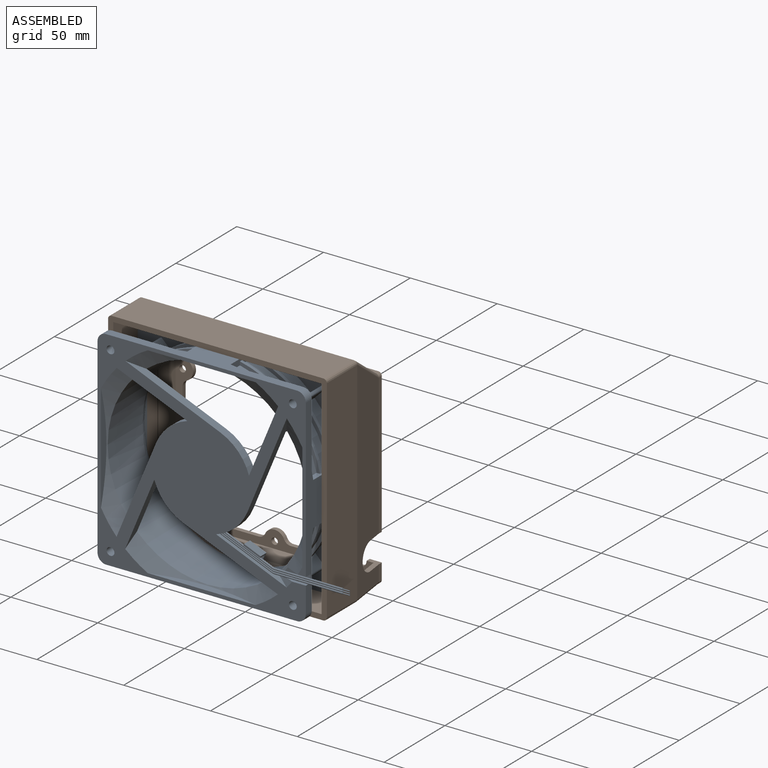
[diagram: assembled view]
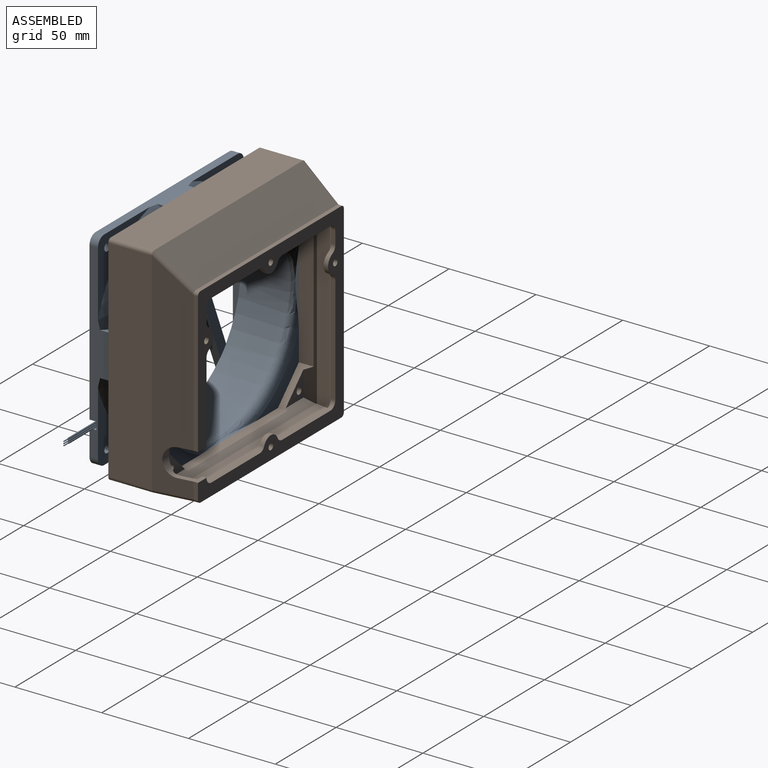
[diagram: assembled view, second angle]
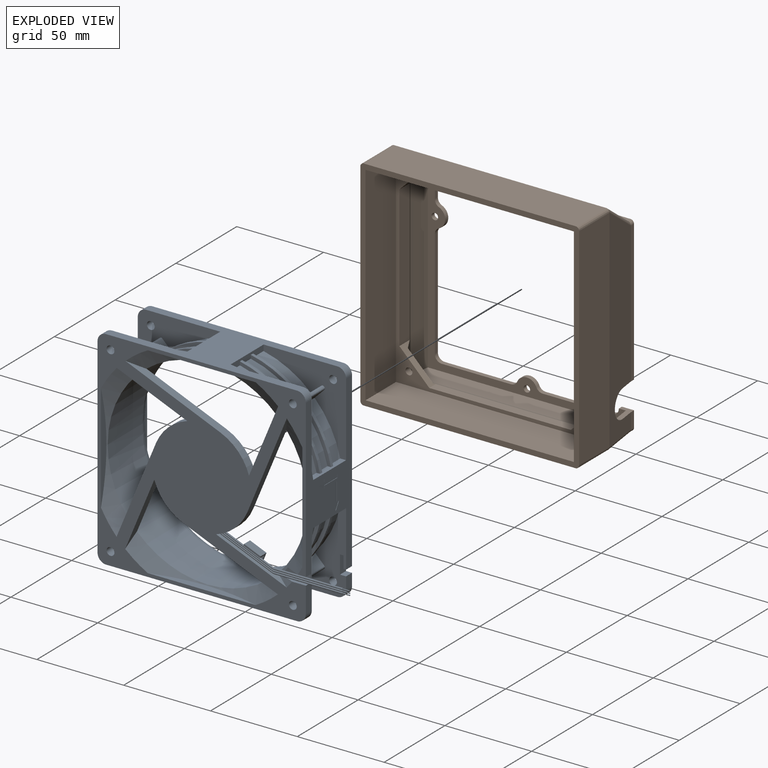
[diagram: exploded view]
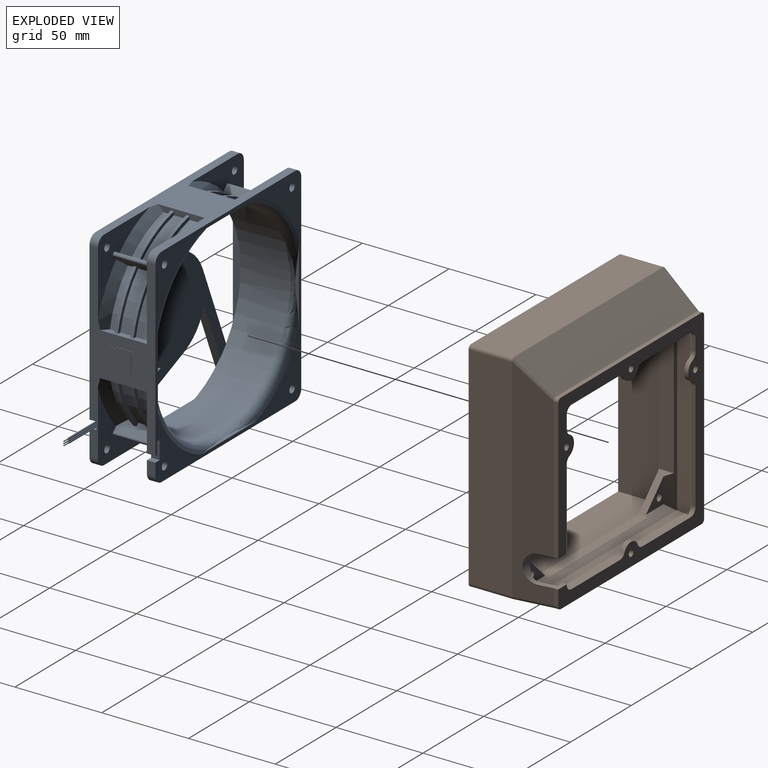
[diagram: exploded view, second angle]
ASSEMBLY  parts=2 mates=3
PART A: 225 faces, bbox 157.3x141.9x42.8 mm
  f0: torus R=3mm, axis (0,0,-1), area 3.8mm2, adj f2,f5,f6,f27,f28
  f1: torus R=3mm, axis (0,0,-1), area 3.9mm2, adj f2,f9,f25
  f2: torus R=3mm, axis (0,0,-1), area 3.8mm2, adj f0,f1,f7,f25,f27,f28
  f3: cylinder r=0.3mm len=4mm, axis (1,0,0), area 7.5mm2, adj f203,f205
  f4: cylinder r=0.3mm len=4mm, axis (1,0,0), area 7.5mm2, adj f202,f204
  f5: cylinder r=0.53mm len=39.33mm, axis (1,0,0), area 129.7mm2, adj f0,f203
  f6: cylinder r=0.53mm len=28.27mm, axis (0.92,-0.38,0), area 90mm2, adj f0,f26,f27,f28
  f7: cylinder r=0.53mm len=39.33mm, axis (1,0,0), area 129.7mm2, adj f2,f202
  f8: cylinder r=0.3mm len=4mm, axis (1,0,0), area 7.5mm2, adj f200,f201
  f9: cylinder r=0.53mm len=39.33mm, axis (1,0,0), area 129.7mm2, adj f1,f200
  f10: cylinder r=2.25mm len=4.9mm, axis (0,0,-1), area 69.3mm2, adj f115,f119
  f11: cylinder r=2.25mm len=4.9mm, axis (0,0,-1), area 69.3mm2, adj f43,f119
  f12: cylinder r=2.25mm len=4.9mm, axis (0,0,-1), area 69.3mm2, adj f55,f119
  f13: cylinder r=2.25mm len=4.9mm, axis (0,0,-1), area 69.3mm2, adj f72,f120
  f14: cylinder r=2.25mm len=4.9mm, axis (0,0,-1), area 69.3mm2, adj f34,f120
  f15: cylinder r=2.25mm len=4.9mm, axis (0,0,-1), area 69.3mm2, adj f46,f120
  f16: cylinder r=2.25mm len=4.9mm, axis (0,0,-1), area 69.3mm2, adj f67,f119
  f17: cylinder r=2.25mm len=4.9mm, axis (0,0,-1), area 69.3mm2, adj f58,f120
  f18: cylinder r=1mm len=28.2mm, axis (0,0,1), area 44.3mm2, adj f34,f43,f162,f163
  f19: cylinder r=1mm len=28.2mm, axis (0,0,-1), area 44.3mm2, adj f46,f55,f158,f160
  f20: cylinder r=1mm len=28.2mm, axis (0,0,1), area 44.3mm2, adj f58,f67,f156,f157
  f21: cylinder r=1mm len=28.2mm, axis (0,0,-1), area 44.3mm2, adj f72,f112,f115,f141
  f22: cylinder r=57.5mm len=115mm, axis (0,0,1), area 10263.8mm2, adj f23,f24,f30,f118,f125,f126,f127,f128
  f23: cone r=57.5mm half-angle=60deg, axis (0,0,1), area 580.2mm2, adj f22,f119,f134,f189,f192
  f24: cone r=57.5mm half-angle=60deg, axis (0,0,1), area 534.4mm2, adj f22,f119,f136,f175,f176,f177,f188,f193
  f25: cylinder r=0.53mm len=31.07mm, axis (0.92,-0.38,0), area 98.9mm2, adj f1,f2,f26,f27,f28
  f26: cylinder r=28.5mm len=18.01mm, axis (0,0,-1), area 122.4mm2, adj f6,f25,f27,f28,f119,f186,f188,f193
  f27: cylinder r=0.53mm len=29.6mm, axis (0.92,-0.38,0), area 43mm2, adj f0,f2,f6,f25,f26
  f28: cylinder r=0.53mm len=29.6mm, axis (0.92,-0.38,0), area 43mm2, adj f0,f2,f6,f25,f26
  f29: plane 11.24x8.1mm, normal (0,0,1), area 46.3mm2, adj f188,f195,f196,f198
  f30: cone r=57.5mm half-angle=60deg, axis (0,0,1), area 482.1mm2, adj f22,f119,f135,f187,f190
  f31: plane 110.14x38.14mm, normal (1,0,0), area 1658.4mm2, adj f34,f43,f72,f75,f76,f115,f119,f120
  f32: cylinder r=58mm len=27.66mm, axis (0,0,1), area 276.3mm2, adj f34,f41,f152,f161
  f33: cylinder r=58mm len=27.66mm, axis (0,0,1), area 228.6mm2, adj f38,f42,f152,f161
  f34: plane 47.5x47.5mm, normal (0,0,1), area 827.9mm2, adj f14,f18,f31,f32,f68,f121,f124,f152
  f35: cylinder r=58mm len=27.66mm, axis (0,0,1), area 133.4mm2, adj f36,f37,f152,f161
  f36: cone r=62.5mm half-angle=45deg, axis (0,0,1), area 208.9mm2, adj f35,f43,f124,f152,f161
  f37: plane 29.07x16.83mm, normal (0,0,1), area 65.1mm2, adj f35,f39,f152,f161
  f38: plane 29.07x16.83mm, normal (0,0,-1), area 65.1mm2, adj f33,f39,f152,f161
  f39: cylinder r=60mm len=29.07mm, axis (0,0,1), area 60mm2, adj f37,f38,f152,f161
  f40: cylinder r=60mm len=29.07mm, axis (0,0,-1), area 60mm2, adj f41,f42,f152,f161
  f41: plane 29.07x16.83mm, normal (0,0,-1), area 65.1mm2, adj f32,f40,f152,f161
  f42: plane 29.07x16.83mm, normal (0,0,1), area 65.1mm2, adj f33,f40,f152,f161
  f43: plane 42.5x42.5mm, normal (0,0,-1), area 559mm2, adj f11,f18,f31,f36,f75,f124,f161,f162
  f44: cylinder r=58mm len=27.66mm, axis (0,0,1), area 276.3mm2, adj f46,f53,f150,f158
  f45: cylinder r=58mm len=27.66mm, axis (0,0,1), area 228.6mm2, adj f50,f54,f150,f158
  f46: plane 47.5x47.5mm, normal (0,0,1), area 854.2mm2, adj f15,f19,f44,f89,f123,f124,f150,f151
  f47: cylinder r=58mm len=27.66mm, axis (0,0,1), area 133.4mm2, adj f48,f49,f150,f158
  f48: cone r=62.5mm half-angle=45deg, axis (0,0,1), area 208.9mm2, adj f47,f55,f123,f150,f158
  f49: plane 29.07x16.83mm, normal (0,0,1), area 65.1mm2, adj f47,f51,f150,f158
  f50: plane 29.07x16.83mm, normal (0,0,-1), area 65.1mm2, adj f45,f51,f150,f158
  f51: cylinder r=60mm len=29.07mm, axis (0,0,1), area 60mm2, adj f49,f50,f150,f158
  f52: cylinder r=60mm len=29.07mm, axis (0,0,-1), area 60mm2, adj f53,f54,f150,f158
  f53: plane 29.07x16.83mm, normal (0,0,-1), area 65.1mm2, adj f44,f52,f150,f158
  f54: plane 29.07x16.83mm, normal (0,0,1), area 65.1mm2, adj f45,f52,f150,f158
  f55: plane 42.5x42.5mm, normal (0,0,-1), area 559mm2, adj f12,f19,f48,f92,f123,f124,f158,f159
  f56: cylinder r=58mm len=27.66mm, axis (0,0,1), area 276.3mm2, adj f58,f65,f111,f155
  f57: cylinder r=58mm len=27.66mm, axis (0,0,1), area 228.6mm2, adj f62,f66,f111,f155
  f58: plane 47.5x47.5mm, normal (0,0,1), area 854.2mm2, adj f17,f20,f56,f99,f111,f122,f123,f149
  f59: cylinder r=58mm len=27.66mm, axis (0,0,1), area 133.4mm2, adj f60,f61,f111,f155
  f60: cone r=62.5mm half-angle=45deg, axis (0,0,1), area 208.9mm2, adj f59,f67,f111,f122,f155
  f61: plane 29.07x16.83mm, normal (0,0,1), area 65.1mm2, adj f59,f63,f111,f155
  f62: plane 29.07x16.83mm, normal (0,0,-1), area 65.1mm2, adj f57,f63,f111,f155
  f63: cylinder r=60mm len=29.07mm, axis (0,0,1), area 60mm2, adj f61,f62,f111,f155
  f64: cylinder r=60mm len=29.07mm, axis (0,0,-1), area 60mm2, adj f65,f66,f111,f155
  f65: plane 29.07x16.83mm, normal (0,0,-1), area 65.1mm2, adj f56,f64,f111,f155
  f66: plane 29.07x16.83mm, normal (0,0,1), area 65.1mm2, adj f57,f64,f111,f155
  f67: plane 42.5x42.5mm, normal (0,0,-1), area 559mm2, adj f16,f20,f60,f102,f122,f123,f155,f156
  f68: cylinder r=58mm len=27.66mm, axis (0,0,1), area 276.3mm2, adj f34,f85,f153,f162
  f69: cylinder r=58mm len=27.66mm, axis (0,0,1), area 276.3mm2, adj f72,f86,f112,f154
  f70: cylinder r=58mm len=27.66mm, axis (0,0,1), area 228.6mm2, adj f79,f87,f153,f162
  f71: cylinder r=58mm len=27.66mm, axis (0,0,1), area 228.6mm2, adj f80,f88,f112,f154
  f72: plane 47.5x47.5mm, normal (0,0,1), area 854.2mm2, adj f13,f21,f31,f69,f109,f110,f112,f113
  f73: cylinder r=58mm len=27.66mm, axis (0,0,1), area 133.4mm2, adj f75,f77,f153,f162
  f74: cylinder r=58mm len=27.66mm, axis (0,0,1), area 133.4mm2, adj f76,f78,f112,f154
  f75: cone r=62.5mm half-angle=45deg, axis (0,0,1), area 208.9mm2, adj f31,f43,f73,f153,f162
  f76: cone r=62.5mm half-angle=45deg, axis (0,0,1), area 208.9mm2, adj f31,f74,f112,f115,f154
  f77: plane 29.07x16.83mm, normal (0,0,1), area 65.1mm2, adj f73,f81,f153,f162
  f78: plane 29.07x16.83mm, normal (0,0,1), area 65.1mm2, adj f74,f82,f112,f154
  f79: plane 29.07x16.83mm, normal (0,0,-1), area 65.1mm2, adj f70,f81,f153,f162
  f80: plane 29.07x16.83mm, normal (0,0,-1), area 65.1mm2, adj f71,f82,f112,f154
  f81: cylinder r=60mm len=29.07mm, axis (0,0,1), area 60mm2, adj f77,f79,f153,f162
  f82: cylinder r=60mm len=29.07mm, axis (0,0,1), area 60mm2, adj f78,f80,f112,f154
  f83: cylinder r=60mm len=29.07mm, axis (0,0,-1), area 60mm2, adj f85,f87,f153,f162
  f84: cylinder r=60mm len=29.07mm, axis (0,0,-1), area 60mm2, adj f86,f88,f112,f154
  f85: plane 29.07x16.83mm, normal (0,0,-1), area 65.1mm2, adj f68,f83,f153,f162
  f86: plane 29.07x16.83mm, normal (0,0,-1), area 65.1mm2, adj f69,f84,f112,f154
  f87: plane 29.07x16.83mm, normal (0,0,1), area 65.1mm2, adj f70,f83,f153,f162
  f88: plane 29.07x16.83mm, normal (0,0,1), area 65.1mm2, adj f71,f84,f112,f154
  f89: cylinder r=58mm len=27.66mm, axis (0,0,1), area 276.3mm2, adj f46,f97,f151,f159
  f90: cylinder r=58mm len=27.66mm, axis (0,0,1), area 228.6mm2, adj f94,f98,f151,f159
  f91: cylinder r=58mm len=27.66mm, axis (0,0,1), area 133.4mm2, adj f92,f93,f151,f159
  f92: cone r=62.5mm half-angle=45deg, axis (0,0,1), area 208.9mm2, adj f55,f91,f124,f151,f159
  f93: plane 29.07x16.83mm, normal (0,0,1), area 65.1mm2, adj f91,f95,f151,f159
  f94: plane 29.07x16.83mm, normal (0,0,-1), area 65.1mm2, adj f90,f95,f151,f159
  f95: cylinder r=60mm len=29.07mm, axis (0,0,1), area 60mm2, adj f93,f94,f151,f159
  f96: cylinder r=60mm len=29.07mm, axis (0,0,-1), area 60mm2, adj f97,f98,f151,f159
  f97: plane 29.07x16.83mm, normal (0,0,-1), area 65.1mm2, adj f89,f96,f151,f159
  f98: plane 29.07x16.83mm, normal (0,0,1), area 65.1mm2, adj f90,f96,f151,f159
  f99: cylinder r=58mm len=27.66mm, axis (0,0,1), area 276.3mm2, adj f58,f107,f149,f156
  f100: cylinder r=58mm len=27.66mm, axis (0,0,1), area 228.6mm2, adj f104,f108,f149,f156
  f101: cylinder r=58mm len=27.66mm, axis (0,0,1), area 133.4mm2, adj f102,f103,f149,f156
  f102: cone r=62.5mm half-angle=45deg, axis (0,0,1), area 208.9mm2, adj f67,f101,f123,f149,f156
  f103: plane 29.07x16.83mm, normal (0,0,1), area 65.1mm2, adj f101,f105,f149,f156
  f104: plane 29.07x16.83mm, normal (0,0,-1), area 65.1mm2, adj f100,f105,f149,f156
  f105: cylinder r=60mm len=29.07mm, axis (0,0,1), area 60mm2, adj f103,f104,f149,f156
  f106: cylinder r=60mm len=29.07mm, axis (0,0,-1), area 60mm2, adj f107,f108,f149,f156
  f107: plane 29.07x16.83mm, normal (0,0,-1), area 65.1mm2, adj f99,f106,f149,f156
  f108: plane 29.07x16.83mm, normal (0,0,1), area 65.1mm2, adj f100,f106,f149,f156
  f109: cylinder r=58mm len=27.66mm, axis (0,0,1), area 276.3mm2, adj f72,f110,f113,f146
  f110: plane 27.01x3.38mm, normal (1,0,0), area 77.9mm2, adj f72,f109,f114,f116,f117,f122,f143,f144
  f111: plane 27.01x3.38mm, normal (-1,0,0), area 77.9mm2, adj f56,f57,f58,f59,f60,f61,f62,f63
  f112: plane 28.2x5.67mm, normal (0.71,-0.71,0), area 208.6mm2, adj f21,f69,f71,f72,f74,f76,f78,f80
  f113: plane 28.2x5.67mm, normal (-0.71,0.71,0), area 208.6mm2, adj f72,f109,f114,f115,f116,f117,f142,f143
  f114: cylinder r=58mm len=27.66mm, axis (0,0,1), area 228.6mm2, adj f110,f113,f144,f147
  f115: plane 42.5x42.5mm, normal (0,0,-1), area 559mm2, adj f10,f21,f31,f76,f112,f113,f117,f122
  f116: cylinder r=58mm len=27.66mm, axis (0,0,1), area 133.4mm2, adj f110,f113,f117,f145
  f117: cone r=62.5mm half-angle=45deg, axis (0,0,1), area 208.9mm2, adj f110,f113,f115,f116,f122
  f118: cone r=57.5mm half-angle=60deg, axis (0,0,1), area 482.1mm2, adj f22,f119,f133,f191,f194
  f119: plane 120x120mm, normal (0,0,1), area 5800.6mm2, adj f10,f11,f12,f16,f23,f24,f26,f30
  f120: plane 120x120mm, normal (0,0,-1), area 2600.1mm2, adj f13,f14,f15,f17,f31,f121,f122,f123
  f121: plane 7x4.9mm, normal (1,0,0), area 34.3mm2, adj f34,f120,f169,f182
  f122: plane 110.14x38.14mm, normal (0,1,0), area 1789.4mm2, adj f58,f60,f67,f72,f110,f111,f115,f117
  f123: plane 110.14x38.14mm, normal (-1,0,0), area 1789.4mm2, adj f46,f48,f55,f58,f67,f102,f119,f120
  f124: plane 110.14x38.14mm, normal (0,-1,0), area 1789.4mm2, adj f34,f36,f43,f46,f55,f92,f119,f120
  f125: bspline ~33.14x4.44mm, area 140.4mm2, adj f22,f126,f127,f140
  f126: torus R=62.4mm, axis (0,0,1), area 449.6mm2, adj f22,f120,f125,f128,f139,f140
  f127: torus R=62.4mm, axis (0,0,1), area 449.6mm2, adj f22,f120,f125,f129,f138,f140
  f128: bspline ~33.14x4.44mm, area 140.4mm2, adj f22,f126,f130,f139
  f129: bspline ~33.14x4.44mm, area 140.4mm2, adj f22,f127,f131,f138
  f130: torus R=62.4mm, axis (0,0,1), area 449.6mm2, adj f22,f120,f128,f132,f137,f139
  f131: torus R=62.4mm, axis (0,0,1), area 449.6mm2, adj f22,f120,f129,f132,f137,f138
  f132: bspline ~33.14x4.44mm, area 140.4mm2, adj f22,f130,f131,f137
  f133: plane 62.21x4.52mm, normal (0,-1,0), area 184.5mm2, adj f118,f119
  f134: plane 66.98x9.29mm, normal (1,0,0), area 184.7mm2, adj f23,f119
  f135: plane 62.21x4.52mm, normal (0,1,0), area 184.6mm2, adj f30,f119
  f136: plane 66.98x9.29mm, normal (-1,0,0), area 184.6mm2, adj f24,f119
  f137: plane 48.98x5.07mm, normal (-1,0,0), area 49.2mm2, adj f120,f130,f131,f132
  f138: plane 48.98x5.07mm, normal (0,-1,0), area 49.6mm2, adj f120,f127,f129,f131
  f139: plane 48.98x5.07mm, normal (0,1,0), area 49.3mm2, adj f120,f126,f128,f130
  f140: plane 48.98x5.07mm, normal (1,0,0), area 49.3mm2, adj f120,f125,f126,f127
  f141: plane 28.2x0.28mm, normal (0.71,0.71,0), area 11.3mm2, adj f21,f72,f115,f142
  f142: cylinder r=1mm len=28.2mm, axis (0,0,1), area 44.3mm2, adj f72,f113,f115,f141
  f143: cylinder r=60mm len=29.07mm, axis (0,0,1), area 60mm2, adj f110,f113,f144,f145
  f144: plane 29.07x16.83mm, normal (0,0,-1), area 65.1mm2, adj f110,f113,f114,f143
  f145: plane 29.07x16.83mm, normal (0,0,1), area 65.1mm2, adj f110,f113,f116,f143
  f146: plane 29.07x16.83mm, normal (0,0,-1), area 65.1mm2, adj f109,f110,f113,f148
  f147: plane 29.07x16.83mm, normal (0,0,1), area 65.1mm2, adj f110,f113,f114,f148
  f148: cylinder r=60mm len=29.07mm, axis (0,0,-1), area 60mm2, adj f110,f113,f146,f147
  f149: plane 27.01x3.38mm, normal (0,1,0), area 77.9mm2, adj f58,f99,f100,f101,f102,f103,f104,f105
  f150: plane 27.01x3.38mm, normal (0,-1,0), area 77.9mm2, adj f44,f45,f46,f47,f48,f49,f50,f51
  f151: plane 27.01x3.38mm, normal (-1,0,0), area 77.9mm2, adj f46,f89,f90,f91,f92,f93,f94,f95
  f152: plane 27.01x3.38mm, normal (1,0,0), area 77.9mm2, adj f32,f33,f34,f35,f36,f37,f38,f39
  f153: plane 27.01x3.38mm, normal (0,-1,0), area 77.9mm2, adj f31,f34,f68,f70,f73,f75,f77,f79
  f154: plane 27.01x3.38mm, normal (0,1,0), area 77.9mm2, adj f31,f69,f71,f72,f74,f76,f78,f80
  f155: plane 28.2x5.67mm, normal (0.71,0.71,0), area 208.6mm2, adj f56,f57,f58,f59,f60,f61,f62,f63
  f156: plane 28.2x5.67mm, normal (-0.71,-0.71,0), area 208.6mm2, adj f20,f58,f67,f99,f100,f101,f102,f103
  f157: plane 28.2x0.28mm, normal (-0.71,0.71,0), area 11.3mm2, adj f20,f58,f67,f164
  f158: plane 28.2x5.67mm, normal (-0.71,0.71,0), area 208.6mm2, adj f19,f44,f45,f46,f47,f48,f49,f50
  f159: plane 28.2x5.67mm, normal (0.71,-0.71,0), area 208.6mm2, adj f46,f55,f89,f90,f91,f92,f93,f94
  f160: plane 28.2x0.28mm, normal (-0.71,-0.71,0), area 11.3mm2, adj f19,f46,f55,f165
  f161: plane 28.2x5.67mm, normal (-0.71,-0.71,0), area 208.6mm2, adj f32,f33,f34,f35,f36,f37,f38,f39
  f162: plane 28.2x5.67mm, normal (0.71,0.71,0), area 208.6mm2, adj f18,f34,f43,f68,f70,f73,f75,f77
  f163: plane 28.2x0.28mm, normal (0.71,-0.71,0), area 11.3mm2, adj f18,f34,f43,f166
  f164: cylinder r=1mm len=28.2mm, axis (0,0,-1), area 44.3mm2, adj f58,f67,f155,f157
  f165: cylinder r=1mm len=28.2mm, axis (0,0,1), area 44.3mm2, adj f46,f55,f159,f160
  f166: cylinder r=1mm len=28.2mm, axis (0,0,-1), area 44.3mm2, adj f34,f43,f161,f163
  f167: cylinder r=5mm len=5mm, axis (0,0,-1), area 38.5mm2, adj f55,f119,f123,f124
  f168: cylinder r=5mm len=5mm, axis (0,0,1), area 38.5mm2, adj f46,f120,f123,f124
  f169: cylinder r=5mm len=5mm, axis (0,0,1), area 38.5mm2, adj f34,f120,f121,f124
  f170: cylinder r=5mm len=5mm, axis (0,0,-1), area 38.5mm2, adj f31,f43,f119,f124
  f171: cylinder r=5mm len=5mm, axis (0,0,1), area 38.5mm2, adj f58,f120,f122,f123
  f172: cylinder r=5mm len=5mm, axis (0,0,-1), area 38.5mm2, adj f67,f119,f122,f123
  f173: cylinder r=5mm len=5mm, axis (0,0,1), area 38.5mm2, adj f31,f72,f120,f122
  f174: cylinder r=5mm len=5mm, axis (0,0,-1), area 38.5mm2, adj f31,f115,f119,f122
  f175: plane 17.39x4.42mm, normal (0,1,0), area 49.5mm2, adj f24,f31,f119,f177
  f176: plane 13.53x4.36mm, normal (0,-1,0), area 35.6mm2, adj f24,f31,f119,f177
  f177: plane 16.97x4.5mm, normal (0,0,1), area 67.5mm2, adj f24,f31,f175,f176
  f178: plane 4.9x1.5mm, normal (0,-1,0), area 7.3mm2, adj f31,f34,f120,f179
  f179: plane 7x4.9mm, normal (-1,0,0), area 34.3mm2, adj f34,f120,f178,f180
  f180: plane 4.9x2mm, normal (0,-1,0), area 9.8mm2, adj f34,f120,f179,f181
  f181: plane 10.5x4.9mm, normal (1,0,0), area 51.5mm2, adj f34,f120,f180,f182
  f182: plane 4.9x3.5mm, normal (0,1,0), area 17.1mm2, adj f34,f120,f121,f181
  f183: cylinder r=28.5mm len=18.01mm, axis (0,0,-1), area 123.2mm2, adj f119,f186,f191,f194
  f184: cylinder r=28.5mm len=18.01mm, axis (0,0,-1), area 123.2mm2, adj f119,f186,f189,f192
  f185: cylinder r=28.5mm len=18.01mm, axis (0,0,-1), area 123.2mm2, adj f119,f186,f187,f190
  f186: plane 90.88x90.88mm, normal (0,0,-1), area 3628.5mm2, adj f22,f26,f183,f184,f185,f187,f188,f189
  f187: plane 55.25x23.14mm, normal (-0.38,-0.92,0), area 267.4mm2, adj f22,f30,f119,f185,f186
  f188: plane 40.95x17.19mm, normal (0.38,0.92,0), area 182.7mm2, adj f22,f24,f26,f29,f119,f186,f195,f196
  f189: plane 55.25x23.14mm, normal (-0.92,0.38,0), area 267.4mm2, adj f22,f23,f119,f184,f186
  f190: plane 40.95x17.19mm, normal (0.92,-0.38,0), area 193mm2, adj f22,f30,f119,f185,f186
  f191: plane 55.25x23.14mm, normal (0.38,0.92,0), area 267.4mm2, adj f22,f118,f119,f183,f186
  f192: plane 40.95x17.19mm, normal (-0.38,-0.92,0), area 193mm2, adj f22,f23,f119,f184,f186
  f193: plane 55.25x23.14mm, normal (0.92,-0.38,0), area 267.4mm2, adj f22,f24,f26,f119,f186
  f194: plane 40.95x17.19mm, normal (-0.92,0.38,0), area 193mm2, adj f22,f118,f119,f183,f186
  f195: plane 5.08x4.9mm, normal (-0.92,0.38,0), area 9.4mm2, adj f29,f186,f188,f197,f198,f199
  f196: plane 5.08x4.9mm, normal (0.92,-0.38,0), area 9.4mm2, adj f29,f186,f188,f197,f198,f199
  f197: plane 9.52x4.9mm, normal (0.38,0.92,0), area 50.5mm2, adj f186,f195,f196,f199
  f198: plane 9.52x3.94mm, normal (-0.38,-0.92,0), area 40.2mm2, adj f29,f195,f196,f199
  f199: plane 9.9x4.87mm, normal (0,0,1), area 10.3mm2, adj f195,f196,f197,f198
  f200: plane 1.05x1.05mm, normal (1,0,0), area 0.6mm2, adj f8,f9
  f201: plane 0.6x0.6mm, normal (1,0,0), area 0.3mm2, adj f8
  f202: plane 1.05x1.05mm, normal (1,0,0), area 0.6mm2, adj f4,f7
  f203: plane 1.05x1.05mm, normal (1,0,0), area 0.6mm2, adj f3,f5
  f204: plane 0.6x0.6mm, normal (1,0,0), area 0.3mm2, adj f4
  f205: plane 0.6x0.6mm, normal (1,0,0), area 0.3mm2, adj f3
  f206: plane 1.8x0.2mm, normal (0,0,1), area 0.4mm2, adj f31,f207,f212,f213
  f207: plane 10.6x0.2mm, normal (0,1,0), area 2.1mm2, adj f31,f206,f208,f213
  f208: plane 1.75x0.2mm, normal (0,0,1), area 0.3mm2, adj f31,f207,f209,f213
  f209: plane 4.4x2.65mm, normal (0,0.86,-0.52), area 1mm2, adj f31,f208,f210,f213
  f210: plane 4.4x2.65mm, normal (0,-0.86,-0.52), area 1mm2, adj f31,f209,f211,f213
  f211: plane 1.75x0.2mm, normal (0,0,1), area 0.3mm2, adj f31,f210,f212,f213
  f212: plane 10.6x0.2mm, normal (0,-1,0), area 2.1mm2, adj f31,f206,f211,f213
  f213: plane 15x5.3mm, normal (1,0,0), area 30.7mm2, adj f206,f207,f208,f209,f210,f211,f212
  f214: plane 1.8x0.2mm, normal (0,-1,0), area 0.4mm2, adj f31,f215,f220,f221
  f215: plane 10.6x0.2mm, normal (0,0,1), area 2.1mm2, adj f31,f214,f216,f221
  f216: plane 1.75x0.2mm, normal (0,-1,0), area 0.3mm2, adj f31,f215,f217,f221
  f217: plane 4.4x2.65mm, normal (0,0.52,0.86), area 1mm2, adj f31,f216,f218,f221
  f218: plane 4.4x2.65mm, normal (0,0.52,-0.86), area 1mm2, adj f31,f217,f219,f221
  f219: plane 1.75x0.2mm, normal (0,-1,0), area 0.3mm2, adj f31,f218,f220,f221
  f220: plane 10.6x0.2mm, normal (0,0,-1), area 2.1mm2, adj f31,f214,f219,f221
  f221: plane 15x5.3mm, normal (1,0,0), area 30.7mm2, adj f214,f215,f216,f217,f218,f219,f220
  f222: cylinder r=22mm len=44mm, axis (0,0,-1), area 400.9mm2, adj f223,f224
  f223: plane 44x44mm, normal (0,0,1), area 1520.5mm2, adj f222
  f224: plane 44x44mm, normal (0,0,-1), area 1520.5mm2, adj f222
PART B: 88 faces, bbox 127.5x51x127.5 mm
  f0: plane 19.41x7.4mm, normal (-0.91,0.41,0), area 73.7mm2, adj f1,f3,f56,f73,f82,f86
  f1: plane 12.07x8.85mm, normal (-0.99,-0.14,0), area 98.3mm2, adj f0,f9,f56,f82,f83
  f2: plane 14.27x14.27mm, normal (0,1,0), area 89.3mm2, adj f11,f68,f79,f87
  f3: plane 14.45x14.45mm, normal (0,1,0), area 91.9mm2, adj f0,f73,f80,f86
  f4: plane 14.45x14.45mm, normal (0,1,0), area 91.9mm2, adj f75,f78,f85,f86
  f5: plane 46.41x2.5mm, normal (-1,0,0), area 116mm2, adj f9,f26,f30,f84
  f6: plane 89.65x12.07mm, normal (-0.99,-0.14,0), area 1028.3mm2, adj f9,f11,f82,f84,f87
  f7: plane 9x2.5mm, normal (1,0,0), area 22.5mm2, adj f8,f25,f26,f83
  f8: plane 122x22mm, normal (0.99,0.14,0), area 2292.5mm2, adj f7,f14,f54,f55,f57,f82,f83,f84
  f9: plane 114x104.07mm, normal (0,-1,0), area 1825.5mm2, adj f1,f5,f6,f11,f12,f21,f22,f23
  f10: plane 120x25mm, normal (0,0,1), area 3000mm2, adj f63,f65,f67,f77
  f11: plane 117.29x19.24mm, normal (0,-0.59,-0.81), area 2688.4mm2, adj f2,f6,f9,f12,f68,f69,f70,f71
  f12: plane 112.8x12.06mm, normal (0.99,-0.14,0), area 1319.3mm2, adj f9,f11,f56,f85
  f13: plane 120.02x2.02mm, normal (0,-1,0), area 8.4mm2, adj f15,f16,f17,f52,f53,f54
  f14: plane 81.07x2.5mm, normal (1,0,0), area 202.7mm2, adj f8,f15,f26,f54,f84
  f15: cylinder r=2mm len=2.5mm, axis (0,1,0), area 7.9mm2, adj f13,f14,f16,f26
  f16: plane 116x2.5mm, normal (0,0,1), area 290mm2, adj f13,f15,f17,f26
  f17: cylinder r=2mm len=2.5mm, axis (0,1,0), area 7.9mm2, adj f13,f16,f18,f26
  f18: plane 106.07x2.5mm, normal (-1,0,0), area 265.2mm2, adj f17,f19,f26,f51,f52
  f19: cylinder r=2mm len=2.5mm, axis (0,1,0), area 7.9mm2, adj f18,f20,f26,f50
  f20: plane 122x49.5mm, normal (0,0,-1), area 5958mm2, adj f19,f25,f26,f50,f55,f62,f66,f67
  f21: cylinder r=1.88mm len=3.75mm, axis (0,1,0), area 29.5mm2, adj f9,f26
  f22: cylinder r=1.88mm len=3.75mm, axis (0,1,0), area 29.5mm2, adj f9,f26
  f23: cylinder r=1.88mm len=3.75mm, axis (0,1,0), area 29.5mm2, adj f9,f26
  f24: cylinder r=1.88mm len=3.75mm, axis (0,1,0), area 29.5mm2, adj f9,f26
  f25: cylinder r=2mm len=2.5mm, axis (0,1,0), area 7.9mm2, adj f7,f20,f26,f55
  f26: plane 120x110.07mm, normal (0,1,0), area 3118.5mm2, adj f5,f7,f14,f15,f16,f17,f18,f19
  f27: cylinder r=4mm len=3.67mm, axis (0,-1,0), area 11.6mm2, adj f9,f26,f28,f48
  f28: plane 39.84x2.5mm, normal (0,0,1), area 99.6mm2, adj f9,f26,f27,f29
  f29: cylinder r=4mm len=4mm, axis (0,-1,0), area 15.7mm2, adj f9,f26,f28,f83
  f30: cylinder r=4mm len=3.67mm, axis (0,-1,0), area 11.6mm2, adj f5,f9,f26,f31
  f31: cylinder r=6mm len=11mm, axis (0,-1,0), area 34.8mm2, adj f9,f26,f30,f32
  f32: cylinder r=4mm len=3.67mm, axis (0,-1,0), area 11.6mm2, adj f9,f26,f31,f33
  f33: plane 7.34x2.5mm, normal (-1,0,0), area 18.3mm2, adj f9,f26,f32,f34
  f34: cylinder r=4mm len=4mm, axis (0,-1,0), area 15.7mm2, adj f9,f26,f33,f35
  f35: plane 39.84x2.5mm, normal (0,0,-1), area 99.6mm2, adj f9,f26,f34,f36
  f36: cylinder r=4mm len=3.67mm, axis (0,-1,0), area 11.6mm2, adj f9,f26,f35,f37
  f37: cylinder r=6mm len=11mm, axis (0,-1,0), area 34.8mm2, adj f9,f26,f36,f38
  f38: cylinder r=4mm len=3.67mm, axis (0,-1,0), area 11.6mm2, adj f9,f26,f37,f39
  f39: plane 39.84x2.5mm, normal (0,0,-1), area 99.6mm2, adj f9,f26,f38,f40
  f40: cylinder r=4mm len=4mm, axis (0,-1,0), area 15.7mm2, adj f9,f26,f39,f41
  f41: plane 7.34x2.5mm, normal (1,0,0), area 18.3mm2, adj f9,f26,f40,f42
  f42: cylinder r=4mm len=3.67mm, axis (0,-1,0), area 11.6mm2, adj f9,f26,f41,f43
  f43: cylinder r=6mm len=11mm, axis (0,-1,0), area 34.8mm2, adj f9,f26,f42,f44
  f44: cylinder r=4mm len=3.67mm, axis (0,-1,0), area 11.6mm2, adj f9,f26,f43,f45
  f45: plane 62.41x2.5mm, normal (1,0,0), area 156mm2, adj f9,f26,f44,f46
  f46: cylinder r=4mm len=4mm, axis (0,-1,0), area 15.7mm2, adj f9,f26,f45,f47
  f47: plane 39.84x2.5mm, normal (0,0,1), area 99.6mm2, adj f9,f26,f46,f49
  f48: cylinder r=6mm len=11mm, axis (0,-1,0), area 34.8mm2, adj f9,f26,f27,f49
  f49: cylinder r=4mm len=3.67mm, axis (0,-1,0), area 11.6mm2, adj f9,f26,f47,f48
  f50: bspline ~124.27x44.14mm, area 69.4mm2, adj f19,f20,f51,f62
  f51: plane 122x22mm, normal (-0.99,0.14,0), area 2531.2mm2, adj f18,f50,f52,f61
  f52: bspline ~124.27x124.27mm, area 79.7mm2, adj f13,f18,f51,f53,f60
  f53: plane 122x22mm, normal (0,0.59,0.81), area 3237.1mm2, adj f13,f52,f54,f59
  f54: bspline ~124.27x124.27mm, area 79.7mm2, adj f8,f13,f14,f53,f58
  f55: bspline ~124.27x124.27mm, area 69.4mm2, adj f8,f20,f25,f66
  f56: plane 117.29x12.42mm, normal (0,0,1), area 1437mm2, adj f0,f1,f9,f12,f85,f86
  f57: plane 122x25mm, normal (1,0,0), area 3050mm2, adj f8,f58,f66,f67
  f58: extruded ~25x2mm, area 78.5mm2, adj f54,f57,f59,f67
  f59: plane 122x25mm, normal (0,0,1), area 3050mm2, adj f53,f58,f60,f67
  f60: extruded ~25x2mm, area 78.5mm2, adj f52,f59,f61,f67
  f61: plane 122x25mm, normal (-1,0,0), area 3050mm2, adj f51,f60,f62,f67
  f62: extruded ~25x2mm, area 78.5mm2, adj f20,f50,f61,f67
  f63: plane 120x25mm, normal (1,0,0), area 3000mm2, adj f10,f64,f67,f77
  f64: plane 120x25mm, normal (0,0,-1), area 3000mm2, adj f63,f65,f67,f77
  f65: plane 120x25mm, normal (-1,0,0), area 3000mm2, adj f10,f64,f67,f77
  f66: extruded ~25x2mm, area 78.5mm2, adj f20,f55,f57,f67
  f67: plane 126x126mm, normal (0,-1,0), area 1472.5mm2, adj f10,f20,f57,f58,f59,f60,f61,f62
  f68: plane 17.21x17.21mm, normal (-0.71,0,-0.71), area 103.1mm2, adj f2,f11,f70,f72,f77,f87
  f69: plane 17.21x17.21mm, normal (0.71,0,-0.71), area 103.1mm2, adj f11,f70,f71,f76,f77,f85
  f70: plane 81.57x2.76mm, normal (0,0,-1), area 225.3mm2, adj f11,f68,f69,f77
  f71: plane 14.27x14.27mm, normal (0,1,0), area 89.3mm2, adj f11,f69,f81,f85
  f72: plane 81.57x8.52mm, normal (-1,0,0), area 691mm2, adj f68,f73,f77,f82,f87
  f73: plane 17.23x17.23mm, normal (-0.71,0,0.71), area 102.5mm2, adj f0,f3,f72,f74,f77,f82,f86
  f74: plane 81.57x5.47mm, normal (0,0,1), area 446mm2, adj f73,f75,f77,f86
  f75: plane 17.21x17.21mm, normal (0.71,0,0.71), area 104.7mm2, adj f4,f74,f76,f77,f85,f86
  f76: plane 81.57x8.52mm, normal (1,0,0), area 695.1mm2, adj f69,f75,f77,f85
  f77: plane 120x120mm, normal (0,-1,0), area 1486.3mm2, adj f10,f63,f64,f65,f68,f69,f70,f72
  f78: cylinder r=2mm len=4mm, axis (0,-1,0), area 50.3mm2, adj f4,f77
  f79: cylinder r=2mm len=4mm, axis (0,-1,0), area 50.3mm2, adj f2,f77
  f80: cylinder r=2mm len=4mm, axis (0,-1,0), area 50.3mm2, adj f3,f77
  f81: cylinder r=2mm len=4mm, axis (0,-1,0), area 50.3mm2, adj f71,f77
  f82: cylinder r=8mm len=16mm, axis (1,0,0), area 97.5mm2, adj f0,f1,f6,f8,f72,f73,f83,f84
  f83: plane 11x8.16mm, normal (0,0,1), area 43mm2, adj f1,f7,f8,f9,f26,f29,f82
  f84: plane 11x8.16mm, normal (0,0,-1), area 43mm2, adj f5,f6,f8,f9,f14,f26,f82
  f85: plane 117.1x5.95mm, normal (0.91,0.41,0), area 326.8mm2, adj f4,f11,f12,f56,f69,f71,f75,f76
  f86: plane 116.96x5.58mm, normal (0,0.44,0.9), area 575.6mm2, adj f0,f3,f4,f56,f73,f74,f75,f85
  f87: plane 94.86x5.97mm, normal (-0.91,0.41,0), area 209.3mm2, adj f2,f6,f11,f68,f72,f82
PLACE A rot(axis=(1,0,0),90deg) t=(28.49,13.87,43.93)mm
PLACE B t=(-31.51,57.37,-19.07)mm
MATE planar B.f77 <-> A.f12  axis (0,-1,0) through (28.49,32.87,-16.07)mm
MATE planar A.f122 <-> B.f64  axis (0,0,1) through (28.49,13.82,103.93)mm
MATE planar A.f123 <-> B.f63  axis (-1,0,0) through (-31.51,13.82,43.93)mm
